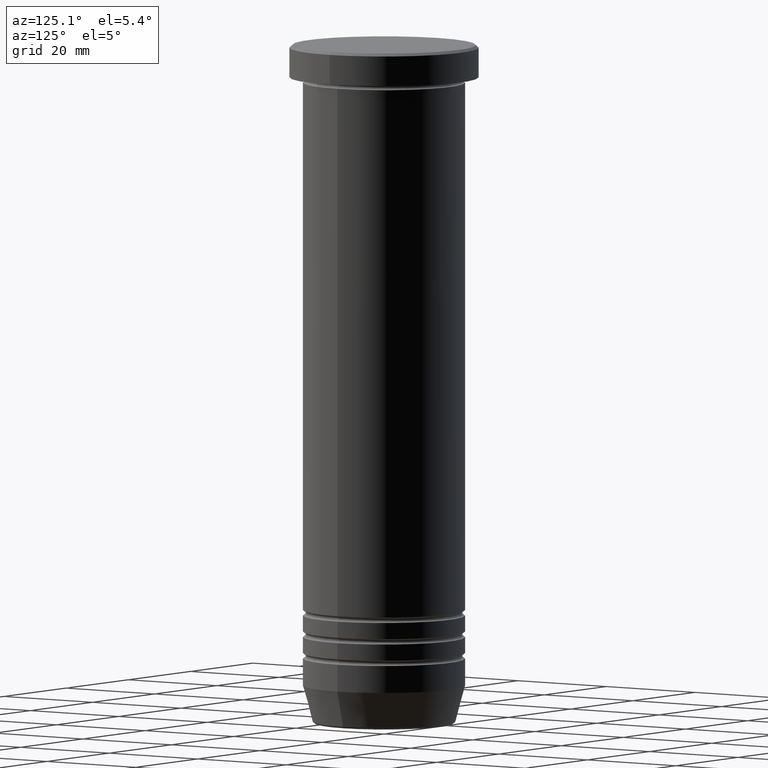
[diagram: clean part render]
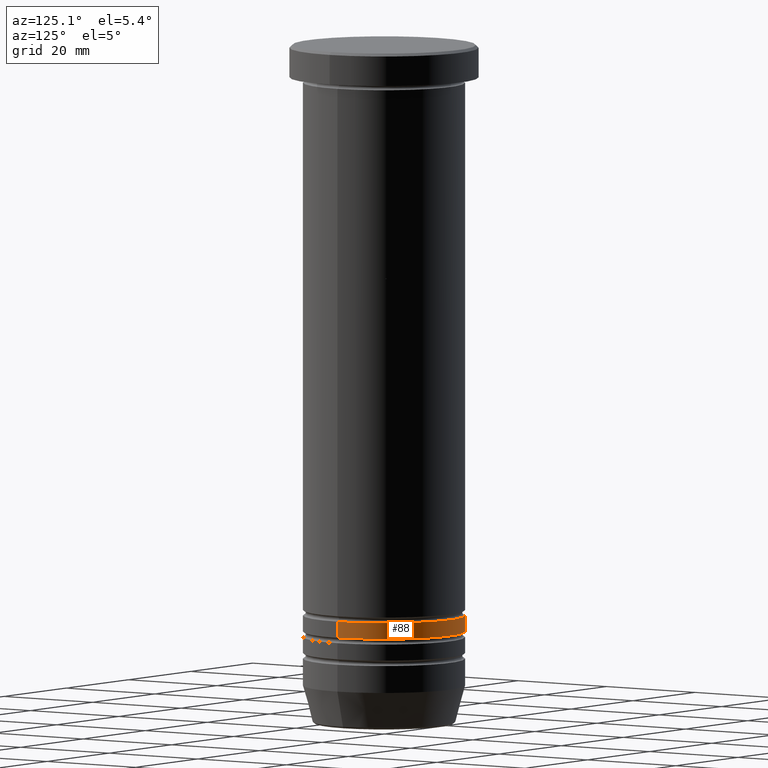
[diagram: same view with one face highlighted and labeled with its STEP entity id]
A machine part, auxiliary view. The second image highlights one B-rep face of the part: STEP entity #88.
In plain terms, the highlighted cylindrical surface (partial cylindrical patch) has radius 15 mm, axis along (-0, -0, 1).
Its self-contained STEP definition (entity closure, byte-faithful):
#36 = DIRECTION ( 'NONE',  ( -0.000000000000000000, -0.000000000000000000, 1.000000000000000000 ) ) ;
#66 = DIRECTION ( 'NONE',  ( -0.000000000000000000, -0.000000000000000000, 1.000000000000000000 ) ) ;
#74 = CARTESIAN_POINT ( 'NONE',  ( 14.99999999999999645, 0.000000000000000000, 0.000000000000000000 ) ) ;
#88 = ADVANCED_FACE ( 'NONE', ( #920 ), #585, .T. ) ;
#112 = VERTEX_POINT ( 'NONE', #133 ) ;
#132 = DIRECTION ( 'NONE',  ( 1.000000000000000000, 0.000000000000000000, 0.000000000000000000 ) ) ;
#133 = CARTESIAN_POINT ( 'NONE',  ( -14.99999999999999645, 1.836970198721029194E-15, -109.0000000000000142 ) ) ;
#178 = LINE ( 'NONE', #74, #758 ) ;
#302 = AXIS2_PLACEMENT_3D ( 'NONE', #558, #476, #132 ) ;
#332 = CARTESIAN_POINT ( 'NONE',  ( 0.000000000000000000, 0.000000000000000000, 0.000000000000000000 ) ) ;
#346 = EDGE_CURVE ( 'NONE', #725, #860, #1062, .T. ) ;
#359 = EDGE_CURVE ( 'NONE', #405, #112, #533, .T. ) ;
#405 = VERTEX_POINT ( 'NONE', #724 ) ;
#414 = DIRECTION ( 'NONE',  ( 1.000000000000000000, 0.000000000000000000, 0.000000000000000000 ) ) ;
#420 = CARTESIAN_POINT ( 'NONE',  ( 0.000000000000000000, 0.000000000000000000, -109.0000000000000142 ) ) ;
#462 = CARTESIAN_POINT ( 'NONE',  ( -14.99999999999999645, 1.836970198721029194E-15, 0.000000000000000000 ) ) ;
#468 = VECTOR ( 'NONE', #723, 1000.000000000000000 ) ;
#476 = DIRECTION ( 'NONE',  ( -0.000000000000000000, -0.000000000000000000, 1.000000000000000000 ) ) ;
#512 = EDGE_CURVE ( 'NONE', #405, #725, #178, .T. ) ;
#520 = EDGE_LOOP ( 'NONE', ( #529, #1144, #884, #594 ) ) ;
#529 = ORIENTED_EDGE ( 'NONE', *, *, #359, .T. ) ;
#533 = CIRCLE ( 'NONE', #797, 14.99999999999999645 ) ;
#558 = CARTESIAN_POINT ( 'NONE',  ( 0.000000000000000000, 0.000000000000000000, -106.0000000000000142 ) ) ;
#585 = CYLINDRICAL_SURFACE ( 'NONE', #1016, 14.99999999999999645 ) ;
#589 = EDGE_CURVE ( 'NONE', #112, #860, #1080, .T. ) ;
#594 = ORIENTED_EDGE ( 'NONE', *, *, #512, .F. ) ;
#598 = DIRECTION ( 'NONE',  ( -0.000000000000000000, -0.000000000000000000, 1.000000000000000000 ) ) ;
#723 = DIRECTION ( 'NONE',  ( -0.000000000000000000, -0.000000000000000000, 1.000000000000000000 ) ) ;
#724 = CARTESIAN_POINT ( 'NONE',  ( 14.99999999999999645, 0.000000000000000000, -109.0000000000000142 ) ) ;
#725 = VERTEX_POINT ( 'NONE', #767 ) ;
#758 = VECTOR ( 'NONE', #598, 1000.000000000000000 ) ;
#763 = DIRECTION ( 'NONE',  ( 1.000000000000000000, 0.000000000000000000, 0.000000000000000000 ) ) ;
#767 = CARTESIAN_POINT ( 'NONE',  ( 14.99999999999999822, 0.000000000000000000, -106.0000000000000142 ) ) ;
#797 = AXIS2_PLACEMENT_3D ( 'NONE', #420, #66, #763 ) ;
#860 = VERTEX_POINT ( 'NONE', #1114 ) ;
#884 = ORIENTED_EDGE ( 'NONE', *, *, #346, .F. ) ;
#920 = FACE_OUTER_BOUND ( 'NONE', #520, .T. ) ;
#1016 = AXIS2_PLACEMENT_3D ( 'NONE', #332, #36, #414 ) ;
#1062 = CIRCLE ( 'NONE', #302, 14.99999999999999822 ) ;
#1080 = LINE ( 'NONE', #462, #468 ) ;
#1114 = CARTESIAN_POINT ( 'NONE',  ( -15.00000000000000000, 1.836970198721029589E-15, -106.0000000000000142 ) ) ;
#1144 = ORIENTED_EDGE ( 'NONE', *, *, #589, .T. ) ;